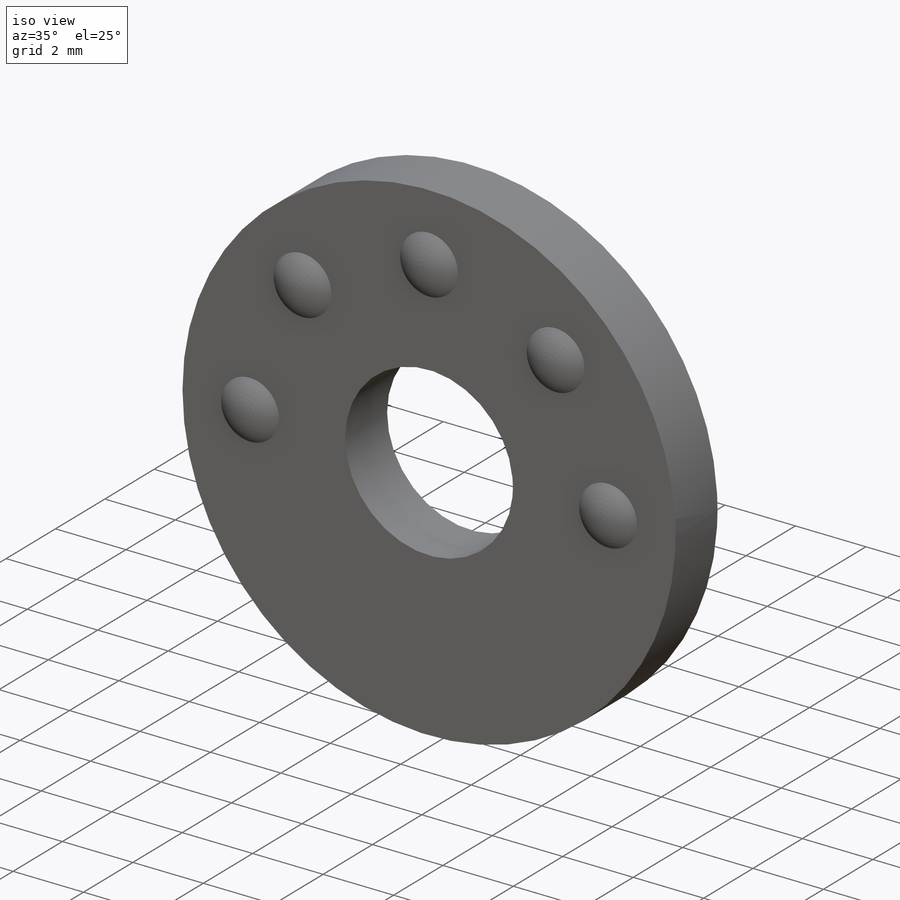
[diagram: iso view]
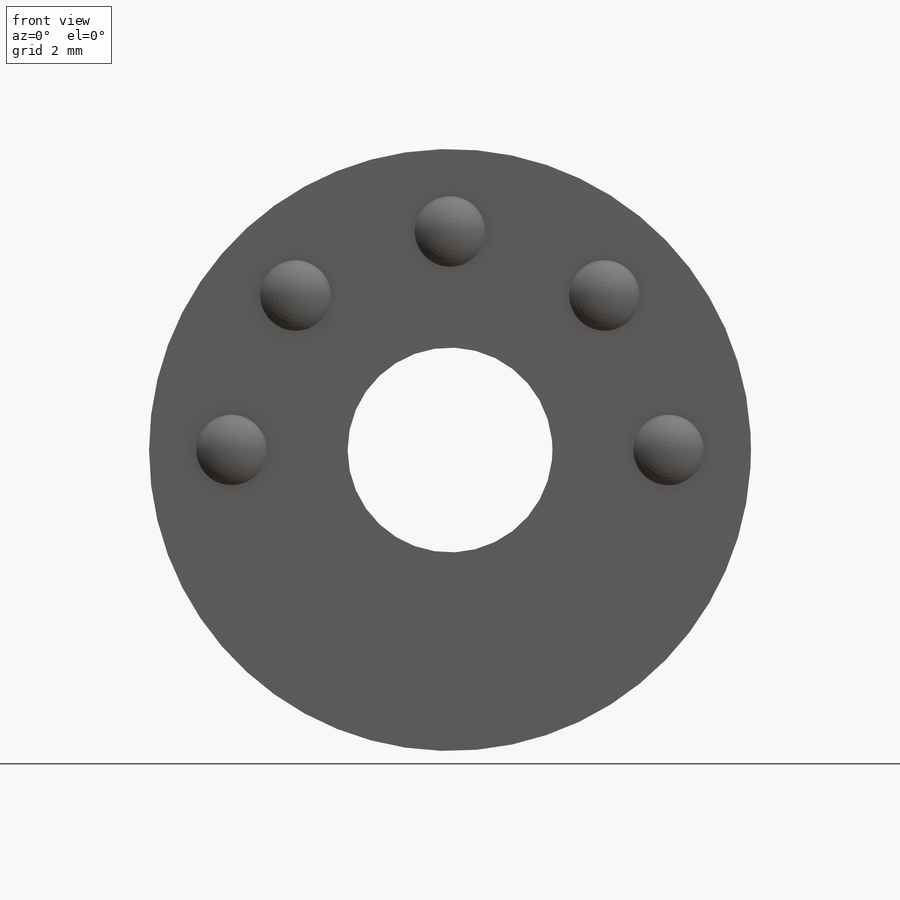
[diagram: front view]
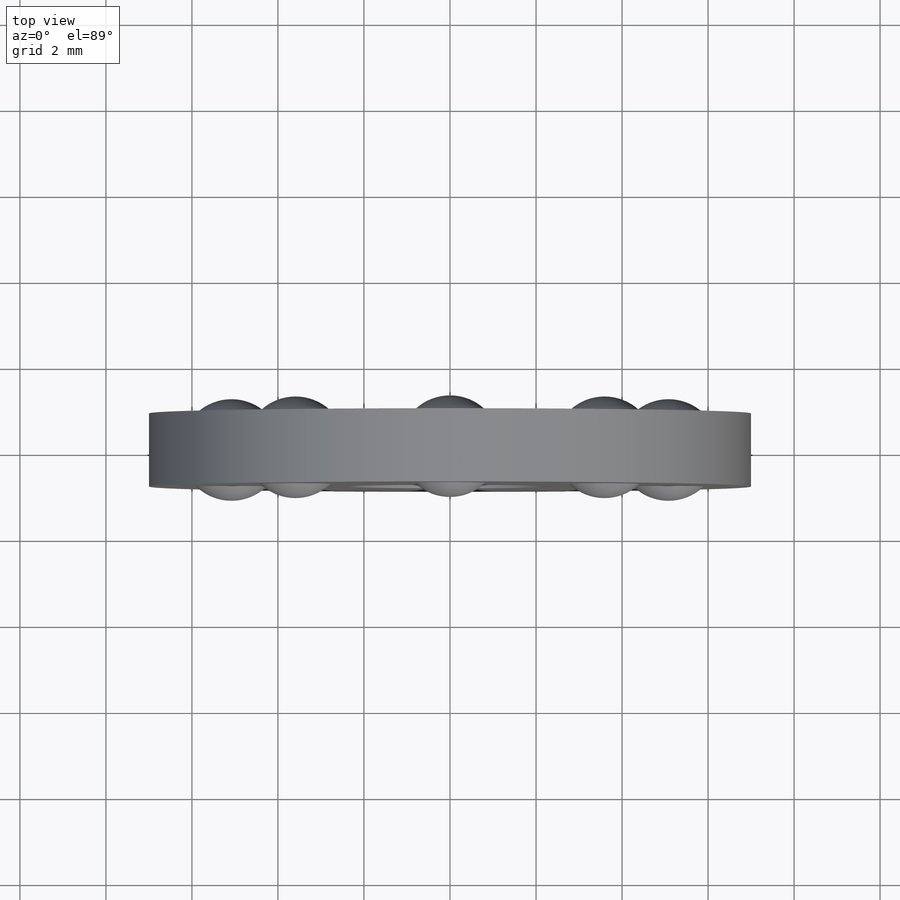
[diagram: top view]
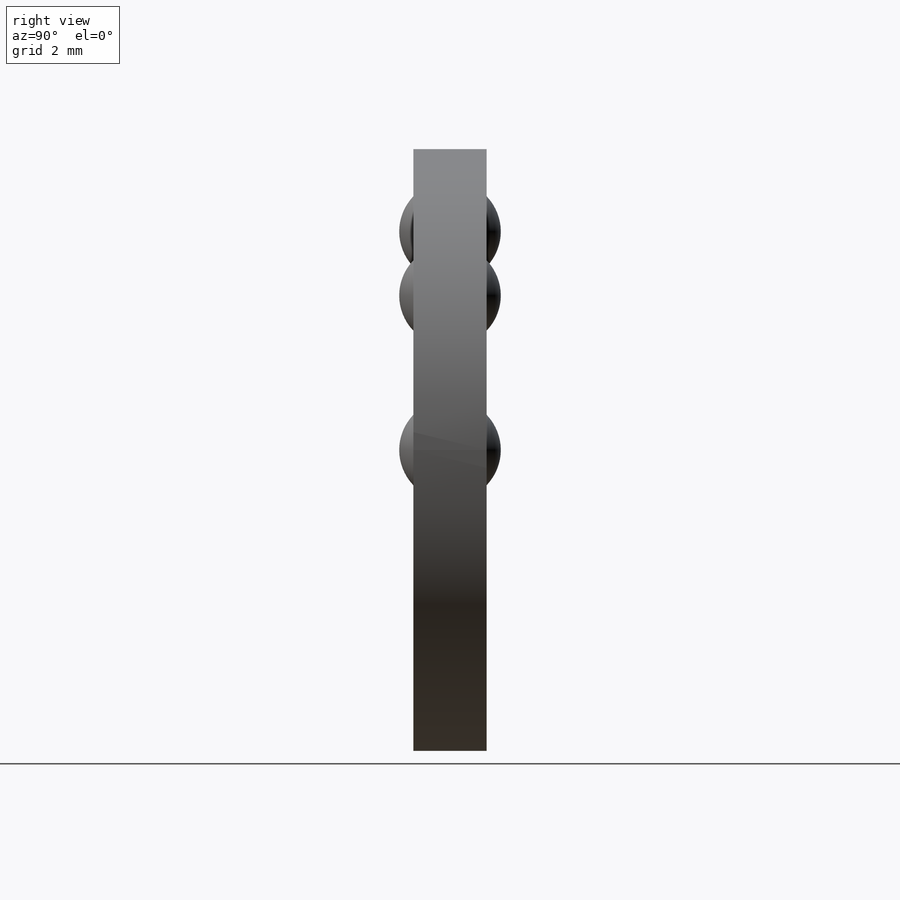
[diagram: right view]
SOLIDWORKS PART (.sldprt)
format: sldprt  version: not decoded by parser v0  size: 548,864 bytes
history: native  units: mm
features: sketch x3, extrude x3, material x1, fillet x1, pattern_circular x1, plane x1, mirror x1 (+16 scaffold rows collapsed)
feature tree (27):
  scaffold x16  (default folders/planes/origin — collapsed)
  material  "Material <not specified>"
  sketch  "Sketch1"  dims[D1=13.9954mm D2=4.7625mm]
  extrude  "Extrude1"  Depth=1.7018mm
  sketch  "Sketch2"  dims[D1=10.16mm D2=2.3622mm]
  extrude  "Extrude2"  Depth=2.3622mm
  fillet  "Fillet1"  Radius=1.1811mm
  pattern_circular  "CirPattern4"  Count=8 Angle=360deg
  plane  "Plane1"  Offset=1.1811mm
  sketch  "Sketch3"  dims[D1=5.2705mm D2=14.1478mm]
  extrude  "Extrude3"  Depth=1.27mm
  mirror  "Mirror2"
decode coverage: 8 of 9 modeling features carry decoded parameters
note: suppression state not decoded; provenance and decode notes live in map.json
